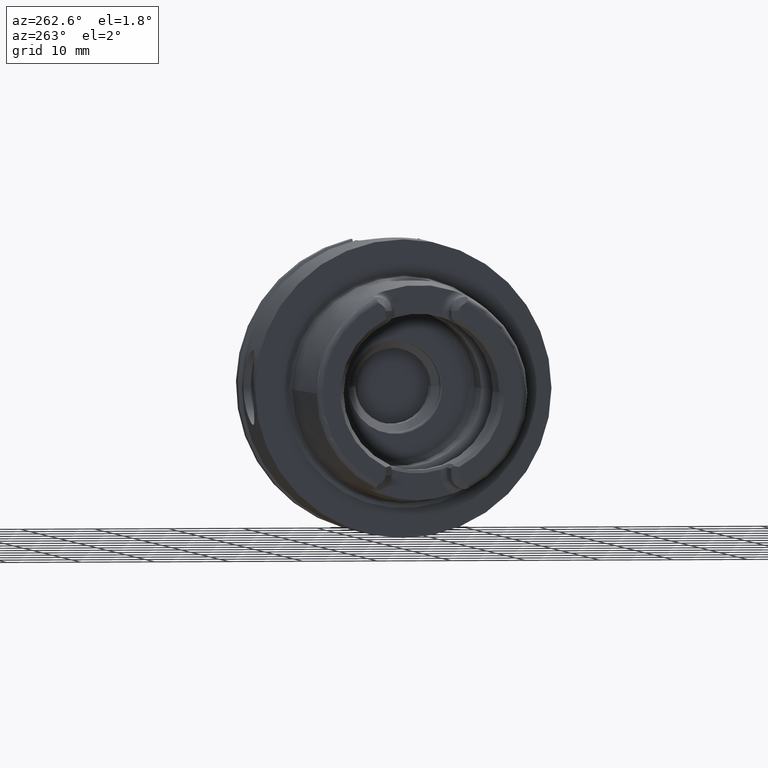
[diagram: clean part render]
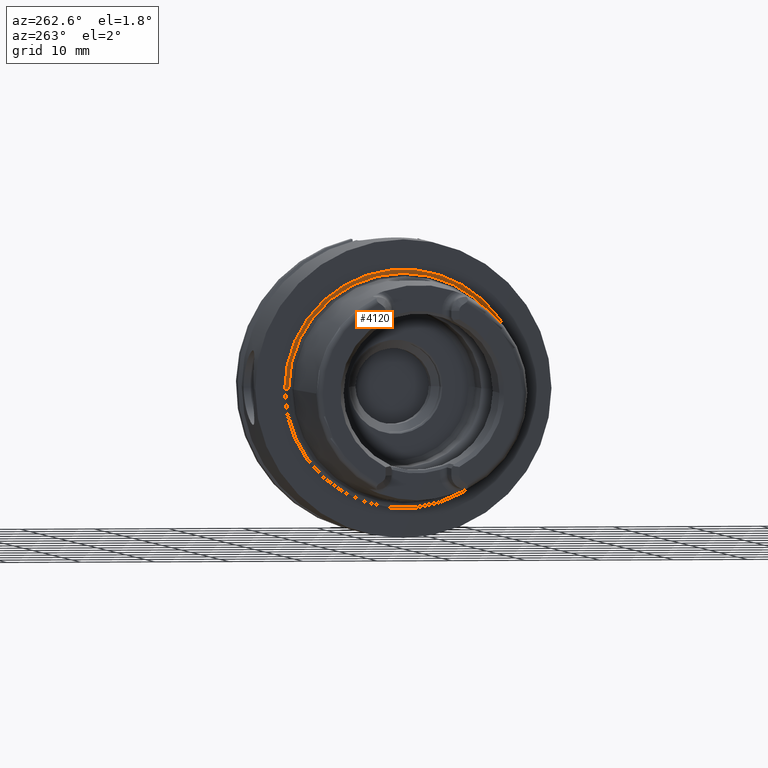
[diagram: same view with one face highlighted and labeled with its STEP entity id]
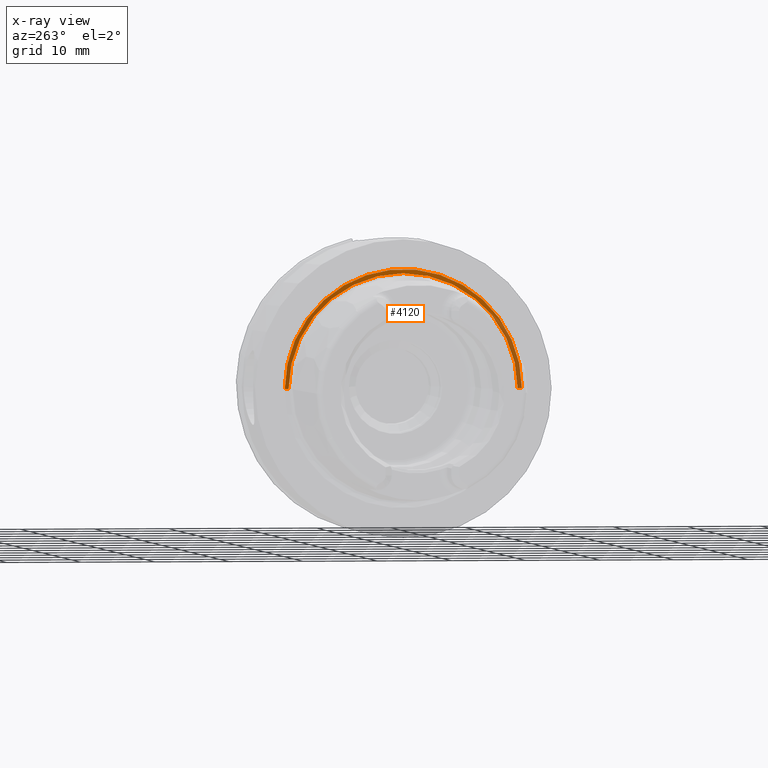
[diagram: x-ray of the same camera — body ghosted, the highlighted face saturated]
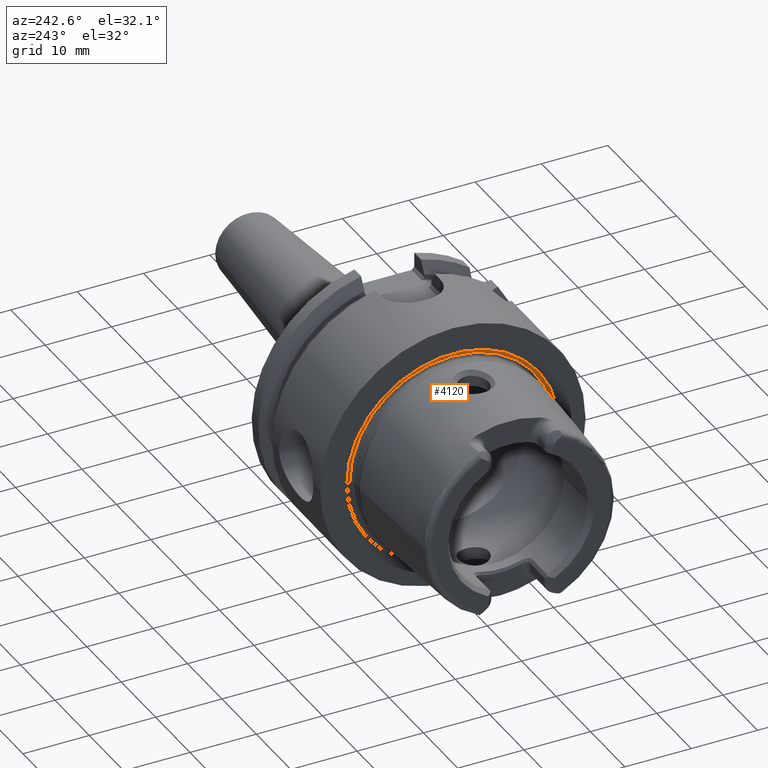
[diagram: same view with one face highlighted and labeled with its STEP entity id]
A machine part, auxiliary view. The second image highlights one B-rep face of the part: STEP entity #4120.
The next image is the same camera in x-ray: the body ghosted, the highlighted face saturated — about 22% of this face is hidden behind the body in this view.
A second angle (auxiliary view) of the same face is appended — the face is thin or edge-on in the first view.
In plain terms, the highlighted conical surface has half-angle 68.5 deg.
Its self-contained STEP definition (entity closure, byte-faithful):
#820=CARTESIAN_POINT('',(2.179898639175E-1,0.E0,0.E0));
#821=DIRECTION('',(-1.E0,0.E0,0.E0));
#822=DIRECTION('',(0.E0,-1.E0,0.E0));
#823=AXIS2_PLACEMENT_3D('',#820,#821,#822);
#840=DIRECTION('',(3.665012267243E-1,9.304175679820E-1,0.E0));
#841=VECTOR('',#840,5.947861781141E-1);
#842=CARTESIAN_POINT('',(0.E0,-1.60037E1,0.E0));
#843=LINE('',#842,#841);
#844=DIRECTION('',(3.665012267243E-1,-9.304175679820E-1,0.E0));
#845=VECTOR('',#844,5.947861781141E-1);
#846=CARTESIAN_POINT('',(0.E0,1.60037E1,0.E0));
#847=LINE('',#846,#845);
#858=CARTESIAN_POINT('',(0.E0,0.E0,0.E0));
#859=DIRECTION('',(-1.E0,0.E0,0.E0));
#860=DIRECTION('',(0.E0,-1.E0,0.E0));
#861=AXIS2_PLACEMENT_3D('',#858,#859,#860);
#2654=CARTESIAN_POINT('',(2.179898639175E-1,-1.545030049069E1,0.E0));
#2656=VERTEX_POINT('',#2654);
#2662=CARTESIAN_POINT('',(2.179898639175E-1,1.545030049069E1,0.E0));
#2664=VERTEX_POINT('',#2662);
#2678=CARTESIAN_POINT('',(0.E0,-1.60037E1,0.E0));
#2679=VERTEX_POINT('',#2678);
#2680=CARTESIAN_POINT('',(0.E0,1.60037E1,0.E0));
#2681=VERTEX_POINT('',#2680);
#4108=CARTESIAN_POINT('',(1.089949319587E-1,0.E0,0.E0));
#4109=DIRECTION('',(-1.E0,0.E0,0.E0));
#4110=DIRECTION('',(0.E0,1.E0,0.E0));
#4111=AXIS2_PLACEMENT_3D('',#4108,#4109,#4110);
#4112=CONICAL_SURFACE('',#4111,1.572700024534E1,6.85E1);
#4113=ORIENTED_EDGE('',*,*,#4098,.T.);
#4114=ORIENTED_EDGE('',*,*,#4075,.T.);
#4115=ORIENTED_EDGE('',*,*,#4102,.F.);
#4117=ORIENTED_EDGE('',*,*,#4116,.F.);
#4118=EDGE_LOOP('',(#4113,#4114,#4115,#4117));
#4119=FACE_OUTER_BOUND('',#4118,.F.);
#4120=ADVANCED_FACE('',(#4119),#4112,.F.);
#824=CIRCLE('',#823,1.545030049069E1);
#862=CIRCLE('',#861,1.60037E1);
#4075=EDGE_CURVE('',#2656,#2664,#824,.T.);
#4098=EDGE_CURVE('',#2679,#2656,#843,.T.);
#4102=EDGE_CURVE('',#2681,#2664,#847,.T.);
#4116=EDGE_CURVE('',#2679,#2681,#862,.T.);